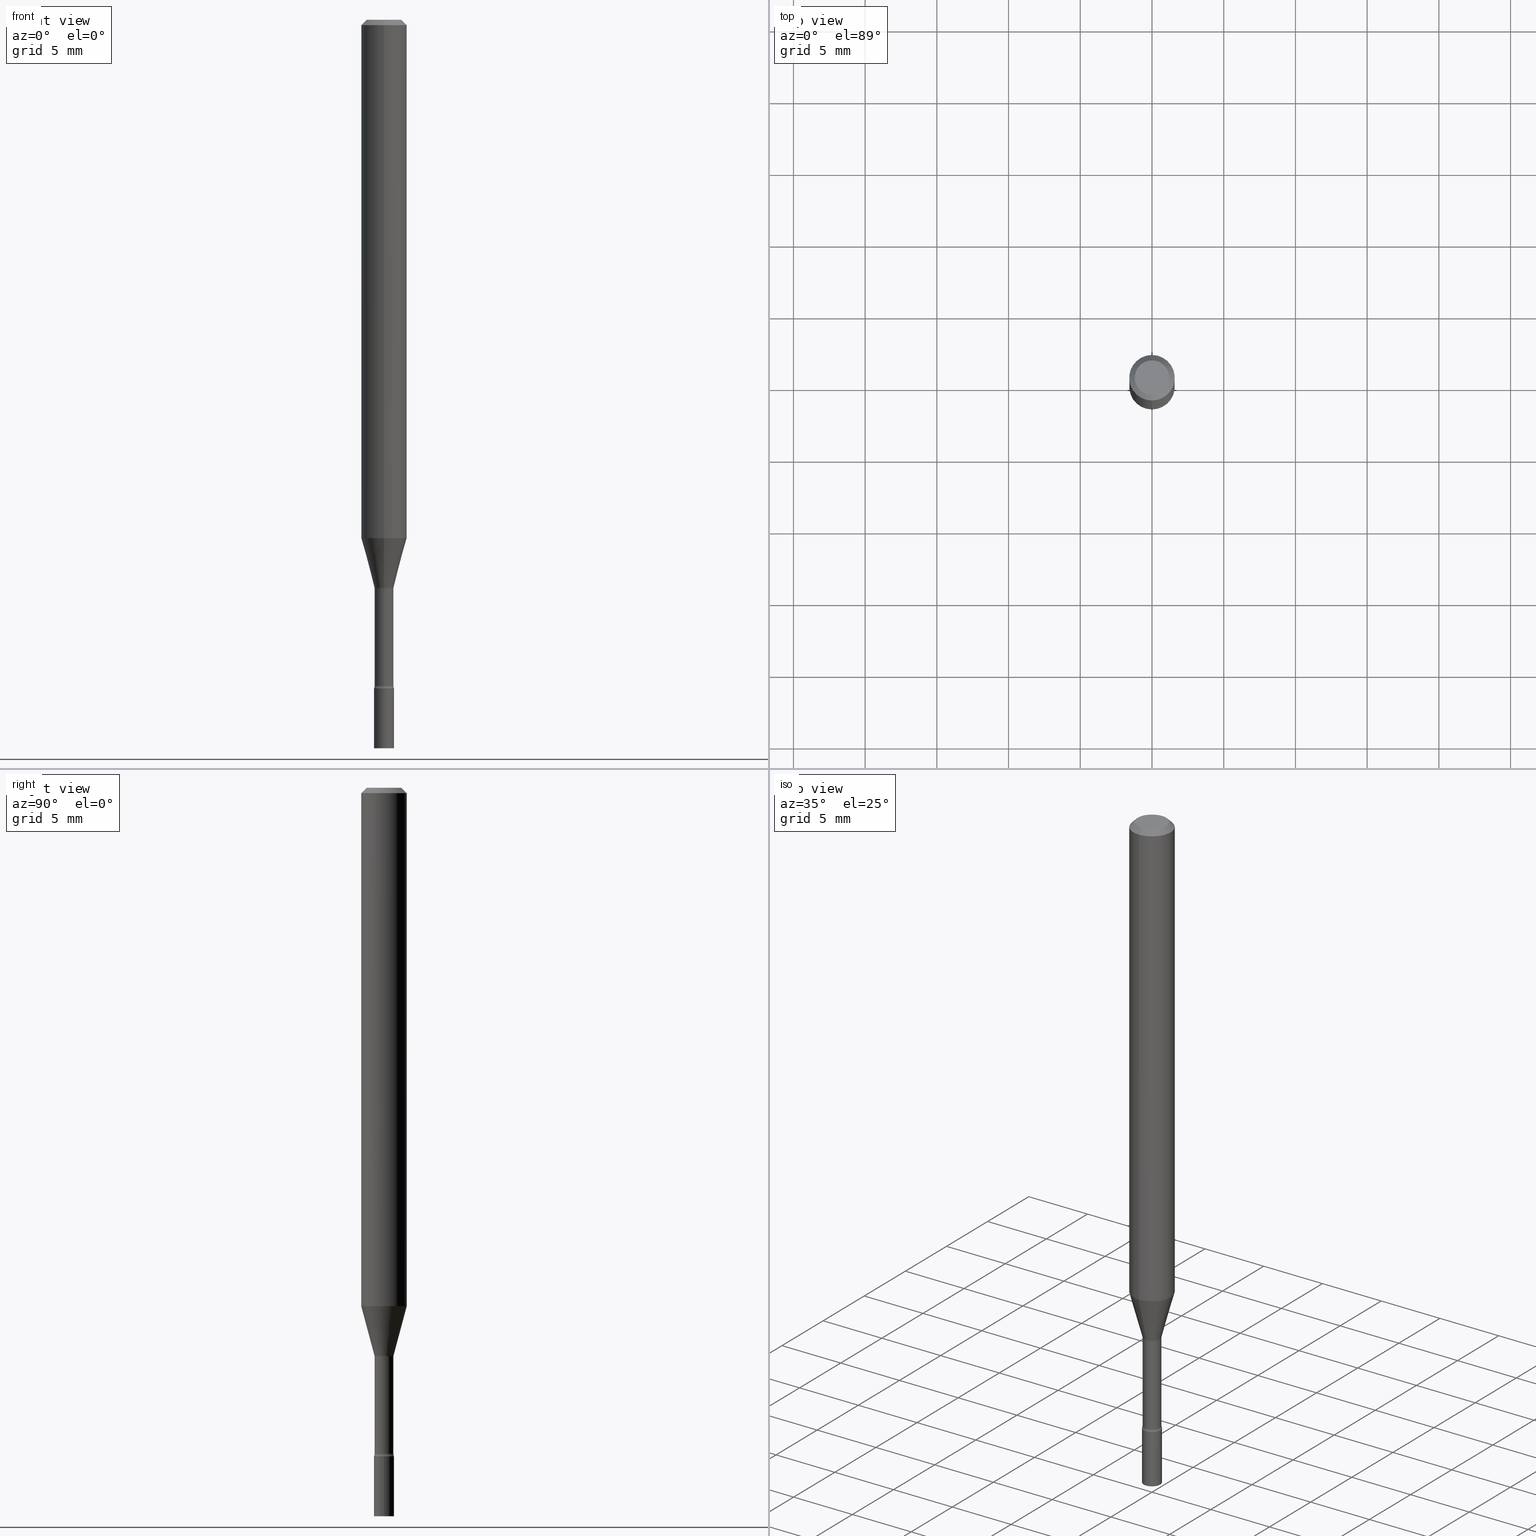
[diagram: canonical four-view strip — front | top / right | iso, engineering-drawing reading convention]
A machine part, canonical four-view strip (front | top / right | iso — engineering-drawing reading convention). The complete STEP part file that produces these views, byte-faithful:
ISO-10303-21;
HEADER;
FILE_DESCRIPTION (( 'STEP AP203' ),
    '1' );
FILE_NAME ('01322.STEP',
    '2024-03-08T21:14:00',
    ( '' ),
    ( '' ),
    'SwSTEP 2.0',
    'SolidWorks 2023',
    '' );
FILE_SCHEMA (( 'CONFIG_CONTROL_DESIGN' ));
ENDSEC;

DATA;
#1 = ORIENTED_EDGE ( 'NONE', *, *, #482, .T. ) ;
#2 = CARTESIAN_POINT ( 'NONE',  ( 4.487435259349726059E-29, -6.406868256777172111E-15, -1.834999999999999964 ) ) ;
#3 = PRODUCT ( '01322', '01322', '', ( #332 ) ) ;
#4 = VECTOR ( 'NONE', #499, 39.37007874015748143 ) ;
#5 = AXIS2_PLACEMENT_3D ( 'NONE', #360, #438, #11 ) ;
#6 = CC_DESIGN_APPROVAL ( #160, ( #16 ) ) ;
#7 = DIRECTION ( 'NONE',  ( -2.445546163158824797E-29, 3.491370559253938417E-15, 1.000000000000000000 ) ) ;
#8 = UNCERTAINTY_MEASURE_WITH_UNIT (LENGTH_MEASURE( 1.000000000000000082E-05 ), #110, 'distance_accuracy_value', 'NONE');
#9 = DIRECTION ( 'NONE',  ( 1.000000000000000000, -6.982962677686266711E-15, 4.876176775795935793E-29 ) ) ;
#10 = DIRECTION ( 'NONE',  ( -2.445546163158824797E-29, 3.491370559253938417E-15, 1.000000000000000000 ) ) ;
#11 = DIRECTION ( 'NONE',  ( -6.982962677686265922E-15, -1.000000000000000000, 0.000000000000000000 ) ) ;
#12 = DIRECTION ( 'NONE',  ( -2.445546163158824797E-29, 3.491370559253938417E-15, 1.000000000000000000 ) ) ;
#13 = ADVANCED_FACE ( 'NONE', ( #493 ), #278, .F. ) ;
#14 = DIRECTION ( 'NONE',  ( 4.937700262164548042E-15, 0.7071067811865451302, -0.7071067811865499042 ) ) ;
#15 = AXIS2_PLACEMENT_3D ( 'NONE', #449, #324, #19 ) ;
#16 = PRODUCT_DEFINITION ( 'UNKNOWN', '', #240, #459 ) ;
#17 = DIRECTION ( 'NONE',  ( -6.982962677686265922E-15, -1.000000000000000000, 3.483106191921935554E-15 ) ) ;
#18 = ORIENTED_EDGE ( 'NONE', *, *, #214, .F. ) ;
#19 = DIRECTION ( 'NONE',  ( -6.982962677686266711E-15, -1.000000000000000000, 3.491370559253938812E-15 ) ) ;
#20 = ORIENTED_EDGE ( 'NONE', *, *, #245, .T. ) ;
#21 = PERSON_AND_ORGANIZATION_ROLE ( 'design_owner' ) ;
#22 = APPROVAL_PERSON_ORGANIZATION ( #99, #160, #218 ) ;
#23 = ORIENTED_EDGE ( 'NONE', *, *, #70, .F. ) ;
#24 = DIRECTION ( 'NONE',  ( 1.000000000000000000, -7.105427357601001070E-15, 4.926314151883389171E-29 ) ) ;
#25 = VERTEX_POINT ( 'NONE', #444 ) ;
#26 = SECURITY_CLASSIFICATION ( '', '', #306 ) ;
#27 = DATE_AND_TIME ( #223, #520 ) ;
#28 = DIRECTION ( 'NONE',  ( -1.807323732225326589E-15, -0.2588190451025176864, 0.9659258262890690894 ) ) ;
#29 = ORIENTED_EDGE ( 'NONE', *, *, #48, .T. ) ;
#30 = DIRECTION ( 'NONE',  ( -6.982962677686266711E-15, -1.000000000000000000, 0.000000000000000000 ) ) ;
#31 = EDGE_CURVE ( 'NONE', #446, #138, #263, .T. ) ;
#32 = AXIS2_PLACEMENT_3D ( 'NONE', #126, #165, #273 ) ;
#33 = APPROVAL ( #404, 'UNSPECIFIED' ) ;
#34 = PERSON_AND_ORGANIZATION ( #86, #323 ) ;
#35 = EDGE_CURVE ( 'NONE', #135, #62, #132, .T. ) ;
#36 = PLANE ( 'NONE',  #63 ) ;
#37 = VECTOR ( 'NONE', #210, 39.37007874015748143 ) ;
#38 = CIRCLE ( 'NONE', #147, 0.02750000000000000014 ) ;
#39 = DIRECTION ( 'NONE',  ( -6.982962677686266711E-15, -1.000000000000000000, 0.000000000000000000 ) ) ;
#40 = CARTESIAN_POINT ( 'NONE',  ( 3.316907271900976096E-16, 0.04749999999999999362, -1.802996880437402498E-16 ) ) ;
#41 = APPROVAL_DATE_TIME ( #441, #125 ) ;
#42 = CARTESIAN_POINT ( 'NONE',  ( 4.487577209396443380E-29, -6.406664976230976964E-15, -1.834999999999999964 ) ) ;
#43 = AXIS2_PLACEMENT_3D ( 'NONE', #393, #349, #517 ) ;
#44 = PRODUCT_DEFINITION_SHAPE ( 'NONE', 'NONE',  #16 ) ;
#45 = DIRECTION ( 'NONE',  ( -2.445546163158824797E-29, 3.491370559253938417E-15, 1.000000000000000000 ) ) ;
#46 = DIRECTION ( 'NONE',  ( -2.445468806185136597E-29, 3.491481338843145583E-15, 1.000000000000000000 ) ) ;
#47 = CARTESIAN_POINT ( 'NONE',  ( 3.156980902676104924E-16, 0.02636111260565853626, -1.558092501787273099 ) ) ;
#48 = EDGE_CURVE ( 'NONE', #417, #215, #319, .T. ) ;
#49 = CONICAL_SURFACE ( 'NONE', #501, 0.02636111260566397288, 0.2617993877991497409 ) ;
#50 = DIRECTION ( 'NONE',  ( -2.445468806185136597E-29, 3.491481338843145583E-15, 1.000000000000000000 ) ) ;
#51 = CONICAL_SURFACE ( 'NONE', #345, 0.06250000000000000000, 0.7853981633974483900 ) ;
#52 = ADVANCED_FACE ( 'NONE', ( #479 ), #36, .T. ) ;
#53 = CIRCLE ( 'NONE', #484, 0.01500000000000003587 ) ;
#54 = CARTESIAN_POINT ( 'NONE',  ( 0.000000000000000000, 0.000000000000000000, 0.000000000000000000 ) ) ;
#55 = AXIS2_PLACEMENT_3D ( 'NONE', #374, #371, #463 ) ;
#56 = ORIENTED_EDGE ( 'NONE', *, *, #90, .T. ) ;
#57 =( LENGTH_UNIT ( ) NAMED_UNIT ( * ) SI_UNIT ( $, .METRE. ) );
#58 = LOCAL_TIME ( 16, 14, 0.000000000000000000, #238 ) ;
#59 = ORIENTED_EDGE ( 'NONE', *, *, #480, .T. ) ;
#60 = LOCAL_TIME ( 16, 14, 0.000000000000000000, #387 ) ;
#61 = DIRECTION ( 'NONE',  ( 1.000000000000000000, 0.000000000000000000, 0.000000000000000000 ) ) ;
#62 = VERTEX_POINT ( 'NONE', #156 ) ;
#63 = AXIS2_PLACEMENT_3D ( 'NONE', #269, #351, #432 ) ;
#64 = ORIENTED_EDGE ( 'NONE', *, *, #406, .T. ) ;
#65 = DIRECTION ( 'NONE',  ( -2.445546163158824797E-29, 3.491370559253938417E-15, 1.000000000000000000 ) ) ;
#66 = FACE_OUTER_BOUND ( 'NONE', #293, .T. ) ;
#67 = COORDINATED_UNIVERSAL_TIME_OFFSET ( 5, 0, .BEHIND. ) ;
#68 = APPROVAL_PERSON_ORGANIZATION ( #152, #33, #127 ) ;
#69 = ORIENTED_EDGE ( 'NONE', *, *, #70, .T. ) ;
#70 = EDGE_CURVE ( 'NONE', #294, #62, #228, .T. ) ;
#71 = FACE_OUTER_BOUND ( 'NONE', #108, .T. ) ;
#72 = CC_DESIGN_DATE_AND_TIME_ASSIGNMENT ( #487, #227, ( #16 ) ) ;
#73 = COORDINATED_UNIVERSAL_TIME_OFFSET ( 5, 0, .BEHIND. ) ;
#74 = AXIS2_PLACEMENT_3D ( 'NONE', #42, #10, #237 ) ;
#75 = CARTESIAN_POINT ( 'NONE',  ( -0.02750000000000000014, -6.499516214897703913E-15, -2.000000000000000000 ) ) ;
#76 = DIRECTION ( 'NONE',  ( -6.982962677686265922E-15, -1.000000000000000000, 3.491370559253938023E-15 ) ) ;
#77 = ADVANCED_FACE ( 'NONE', ( #272 ), #384, .F. ) ;
#78 = ORIENTED_EDGE ( 'NONE', *, *, #31, .T. ) ;
#79 = CARTESIAN_POINT ( 'NONE',  ( 0.000000000000000000, 0.000000000000000000, 0.000000000000000000 ) ) ;
#80 = AXIS2_PLACEMENT_3D ( 'NONE', #518, #236, #122 ) ;
#81 = PERSON_AND_ORGANIZATION_ROLE ( 'creator' ) ;
#82 = EDGE_CURVE ( 'NONE', #102, #25, #357, .T. ) ;
#83 = CARTESIAN_POINT ( 'NONE',  ( 4.470709700753047363E-29, -6.382988591833448692E-15, -1.828160592130893214 ) ) ;
#84 = CC_DESIGN_APPROVAL ( #125, ( #26 ) ) ;
#85 = APPROVAL_DATE_TIME ( #27, #160 ) ;
#86 = PERSON ( 'UNSPECIFIED', 'UNSPECIFIED', 'UNSPECIFIED', ('UNSPECIFIED'), ('UNSPECIFIED'), ('UNSPECIFIED') ) ;
#87 = CIRCLE ( 'NONE', #334, 0.01500000000000001853 ) ;
#88 = DIRECTION ( 'NONE',  ( -2.445546163158824797E-29, 3.491370559253938417E-15, 1.000000000000000000 ) ) ;
#89 = DIRECTION ( 'NONE',  ( -6.982962677686265922E-15, -1.000000000000000000, 3.491370559253938023E-15 ) ) ;
#90 = EDGE_CURVE ( 'NONE', #25, #511, #159, .T. ) ;
#91 = CARTESIAN_POINT ( 'NONE',  ( 4.487435259349726059E-29, -6.406868256777172111E-15, -1.834999999999999964 ) ) ;
#92 = ORIENTED_EDGE ( 'NONE', *, *, #480, .F. ) ;
#93 = VECTOR ( 'NONE', #14, 39.37007874015748143 ) ;
#94 = CIRCLE ( 'NONE', #164, 0.06250000000000000000 ) ;
#95 = ORIENTED_EDGE ( 'NONE', *, *, #400, .T. ) ;
#96 = DIRECTION ( 'NONE',  ( 0.000000000000000000, 0.000000000000000000, 1.000000000000000000 ) ) ;
#97 = ORIENTED_EDGE ( 'NONE', *, *, #208, .F. ) ;
#98 = EDGE_LOOP ( 'NONE', ( #261, #370, #1, #333 ) ) ;
#99 = PERSON_AND_ORGANIZATION ( #86, #323 ) ;
#100 = CARTESIAN_POINT ( 'NONE',  ( 1.920314736364172109E-16, 0.02749999999999359554, -1.834999999999999964 ) ) ;
#101 = ORIENTED_EDGE ( 'NONE', *, *, #82, .T. ) ;
#102 = VERTEX_POINT ( 'NONE', #234 ) ;
#103 = CYLINDRICAL_SURFACE ( 'NONE', #193, 0.06250000000000000000 ) ;
#104 = APPLICATION_PROTOCOL_DEFINITION ( 'international standard', 'config_control_design', 1994, #408 ) ;
#105 = DIMENSIONAL_EXPONENTS ( 1.000000000000000000, 0.000000000000000000, 0.000000000000000000, 0.000000000000000000, 0.000000000000000000, 0.000000000000000000, 0.000000000000000000 ) ;
#106 = AXIS2_PLACEMENT_3D ( 'NONE', #394, #130, #347 ) ;
#107 = EDGE_CURVE ( 'NONE', #25, #102, #145, .T. ) ;
#108 = EDGE_LOOP ( 'NONE', ( #95, #326, #23, #18 ) ) ;
#109 = EDGE_CURVE ( 'NONE', #235, #215, #428, .T. ) ;
#110 =( CONVERSION_BASED_UNIT ( 'INCH', #504 ) LENGTH_UNIT ( ) NAMED_UNIT ( #105 ) );
#111 = EDGE_LOOP ( 'NONE', ( #369, #382 ) ) ;
#112 = CALENDAR_DATE ( 2024, 8, 3 ) ;
#113 = ADVANCED_BREP_SHAPE_REPRESENTATION ( '01322', ( #311, #328, #179 ), #474 ) ;
#114 = AXIS2_PLACEMENT_3D ( 'NONE', #100, #513, #372 ) ;
#115 = CARTESIAN_POINT ( 'NONE',  ( -1.840786654675983805E-16, -0.02636111260566941297, -1.558092501787273099 ) ) ;
#116 = AXIS2_PLACEMENT_3D ( 'NONE', #178, #284, #456 ) ;
#117 = CYLINDRICAL_SURFACE ( 'NONE', #492, 0.06250000000000000000 ) ;
#118 = VERTEX_POINT ( 'NONE', #308 ) ;
#119 = CARTESIAN_POINT ( 'NONE',  ( -4.364351673553916201E-16, -0.06250000000000000000, 2.182106599533711511E-16 ) ) ;
#120 = DIRECTION ( 'NONE',  ( -6.982962677686265922E-15, -1.000000000000000000, 0.000000000000000000 ) ) ;
#121 = ADVANCED_FACE ( 'NONE', ( #197 ), #117, .T. ) ;
#122 = DIRECTION ( 'NONE',  ( -6.982962677686265922E-15, -1.000000000000000000, 4.370956789862821150E-15 ) ) ;
#123 = AXIS2_PLACEMENT_3D ( 'NONE', #40, #166, #491 ) ;
#124 = AXIS2_PLACEMENT_3D ( 'NONE', #427, #380, #30 ) ;
#125 = APPROVAL ( #489, 'UNSPECIFIED' ) ;
#126 = CARTESIAN_POINT ( 'NONE',  ( 3.819760618790408419E-29, -5.453605822173385006E-15, -1.561974787463811021 ) ) ;
#127 = APPROVAL_ROLE ( '' ) ;
#128 = ADVANCED_FACE ( 'NONE', ( #304 ), #379, .T. ) ;
#129 = FACE_OUTER_BOUND ( 'NONE', #268, .T. ) ;
#130 = DIRECTION ( 'NONE',  ( -2.445546163158824797E-29, 3.491370559253938417E-15, 1.000000000000000000 ) ) ;
#131 = CARTESIAN_POINT ( 'NONE',  ( 3.668319244738244448E-31, -5.237055838880918670E-17, -0.01500000000000003067 ) ) ;
#132 = LINE ( 'NONE', #409, #4 ) ;
#133 = DIRECTION ( 'NONE',  ( -1.000000000000000000, 6.982962677686265922E-15, -4.883557194083112340E-29 ) ) ;
#134 = CARTESIAN_POINT ( 'NONE',  ( 4.440892098500976219E-16, 0.06249999999999995143, -0.01500000000000024751 ) ) ;
#135 = VERTEX_POINT ( 'NONE', #75 ) ;
#136 = VECTOR ( 'NONE', #477, 39.37007874015748143 ) ;
#137 = CARTESIAN_POINT ( 'NONE',  ( 0.000000000000000000, 0.000000000000000000, 0.000000000000000000 ) ) ;
#138 = VERTEX_POINT ( 'NONE', #469 ) ;
#139 = DIRECTION ( 'NONE',  ( -6.982962677686265922E-15, -1.000000000000000000, 0.000000000000000000 ) ) ;
#140 = ORIENTED_EDGE ( 'NONE', *, *, #232, .F. ) ;
#141 = ORIENTED_EDGE ( 'NONE', *, *, #506, .T. ) ;
#142 = ORIENTED_EDGE ( 'NONE', *, *, #482, .F. ) ;
#143 = ADVANCED_FACE ( 'NONE', ( #462 ), #49, .T. ) ;
#144 = DIRECTION ( 'NONE',  ( -6.982962677686265922E-15, -1.000000000000000000, 3.483106191921935554E-15 ) ) ;
#145 = CIRCLE ( 'NONE', #412, 0.06250000000000000000 ) ;
#146 = AXIS2_PLACEMENT_3D ( 'NONE', #83, #402, #89 ) ;
#147 = AXIS2_PLACEMENT_3D ( 'NONE', #440, #50, #175 ) ;
#148 = DIRECTION ( 'NONE',  ( -2.445546163158825078E-29, 3.491370559253938417E-15, 1.000000000000000000 ) ) ;
#149 = ORIENTED_EDGE ( 'NONE', *, *, #208, .T. ) ;
#150 = CALENDAR_DATE ( 2024, 8, 3 ) ;
#151 = FACE_OUTER_BOUND ( 'NONE', #280, .T. ) ;
#152 = PERSON_AND_ORGANIZATION ( #86, #323 ) ;
#153 = FACE_OUTER_BOUND ( 'NONE', #411, .T. ) ;
#154 = LINE ( 'NONE', #342, #161 ) ;
#155 = LOCAL_TIME ( 16, 14, 0.000000000000000000, #73 ) ;
#156 = CARTESIAN_POINT ( 'NONE',  ( -0.02750000000000000014, -6.499516214897703913E-15, -1.834999999999999964 ) ) ;
#157 = DIRECTION ( 'NONE',  ( -2.445546163158825078E-29, 3.491370559253938417E-15, 1.000000000000000000 ) ) ;
#158 = EDGE_CURVE ( 'NONE', #392, #373, #259, .T. ) ;
#159 = LINE ( 'NONE', #119, #206 ) ;
#160 = APPROVAL ( #421, 'UNSPECIFIED' ) ;
#161 = VECTOR ( 'NONE', #148, 39.37007874015748143 ) ;
#162 = DATE_AND_TIME ( #355, #58 ) ;
#163 = AXIS2_PLACEMENT_3D ( 'NONE', #486, #7, #170 ) ;
#164 = AXIS2_PLACEMENT_3D ( 'NONE', #497, #509, #144 ) ;
#165 = DIRECTION ( 'NONE',  ( -2.445546163158824797E-29, 3.491370559253938417E-15, 1.000000000000000000 ) ) ;
#166 = DIRECTION ( 'NONE',  ( 2.445546163158824517E-29, -3.491370559253938417E-15, -1.000000000000000000 ) ) ;
#167 = DIRECTION ( 'NONE',  ( 6.982962677686265922E-15, 1.000000000000000000, -3.483106191921935554E-15 ) ) ;
#168 = VECTOR ( 'NONE', #431, 39.37007874015748143 ) ;
#169 = LINE ( 'NONE', #361, #93 ) ;
#170 = DIRECTION ( 'NONE',  ( -6.982962677686265922E-15, -1.000000000000000000, 0.000000000000000000 ) ) ;
#171 = ORIENTED_EDGE ( 'NONE', *, *, #158, .F. ) ;
#172 = ADVANCED_FACE ( 'NONE', ( #153 ), #103, .T. ) ;
#173 = LOCAL_TIME ( 16, 14, 0.000000000000000000, #475 ) ;
#174 = ORIENTED_EDGE ( 'NONE', *, *, #107, .F. ) ;
#175 = DIRECTION ( 'NONE',  ( 1.000000000000000000, -6.982962677686279332E-15, 0.000000000000000000 ) ) ;
#176 = ORIENTED_EDGE ( 'NONE', *, *, #281, .F. ) ;
#177 = AXIS2_PLACEMENT_3D ( 'NONE', #321, #242, #471 ) ;
#178 = CARTESIAN_POINT ( 'NONE',  ( 0.000000000000000000, 0.000000000000000000, 0.000000000000000000 ) ) ;
#179 = AXIS2_PLACEMENT_3D ( 'NONE', #137, #96, #61 ) ;
#180 = ORIENTED_EDGE ( 'NONE', *, *, #309, .F. ) ;
#181 = ORIENTED_EDGE ( 'NONE', *, *, #109, .T. ) ;
#182 = CARTESIAN_POINT ( 'NONE',  ( 3.840629472727447874E-16, 0.04749999999999999362, -1.947592745229183872E-16 ) ) ;
#183 = EDGE_LOOP ( 'NONE', ( #69, #190 ) ) ;
#184 = DIRECTION ( 'NONE',  ( -2.445546163158824797E-29, 3.491370559253938417E-15, 1.000000000000000000 ) ) ;
#185 = CARTESIAN_POINT ( 'NONE',  ( -4.364351673553912750E-16, -0.06250000000000005551, -0.01499999999999981209 ) ) ;
#186 = EDGE_LOOP ( 'NONE', ( #419, #180, #297, #59 ) ) ;
#187 = CIRCLE ( 'NONE', #106, 0.04749999999999999362 ) ;
#188 = CIRCLE ( 'NONE', #163, 0.02585000000000001186 ) ;
#189 = APPROVAL_ROLE ( '' ) ;
#190 = ORIENTED_EDGE ( 'NONE', *, *, #433, .T. ) ;
#191 = DIRECTION ( 'NONE',  ( -6.982962677686264344E-15, -1.000000000000000000, 3.491370559253938417E-15 ) ) ;
#192 = CARTESIAN_POINT ( 'NONE',  ( 3.480551036687311738E-29, -4.968989587084583465E-15, -1.423220337902600718 ) ) ;
#193 = AXIS2_PLACEMENT_3D ( 'NONE', #221, #184, #339 ) ;
#194 = DIRECTION ( 'NONE',  ( -2.445468806185136597E-29, 3.491481338843145583E-15, 1.000000000000000000 ) ) ;
#195 = EDGE_CURVE ( 'NONE', #102, #507, #298, .T. ) ;
#196 = EDGE_CURVE ( 'NONE', #138, #446, #187, .T. ) ;
#197 = FACE_OUTER_BOUND ( 'NONE', #461, .T. ) ;
#198 = PERSON_AND_ORGANIZATION ( #86, #323 ) ;
#199 = FACE_OUTER_BOUND ( 'NONE', #183, .T. ) ;
#200 = AXIS2_PLACEMENT_3D ( 'NONE', #233, #65, #191 ) ;
#201 = PERSON_AND_ORGANIZATION_ROLE ( 'creator' ) ;
#202 = CIRCLE ( 'NONE', #55, 0.02750000000000000014 ) ;
#203 = CARTESIAN_POINT ( 'NONE',  ( 3.668319244738244448E-31, -5.237055838880918670E-17, -0.01500000000000003067 ) ) ;
#204 = CYLINDRICAL_SURFACE ( 'NONE', #285, 0.02585000000000000492 ) ;
#205 = CARTESIAN_POINT ( 'NONE',  ( 1.953992523340724679E-16, 0.02749999999999360248, -1.834999999999999964 ) ) ;
#206 = VECTOR ( 'NONE', #157, 39.37007874015748143 ) ;
#207 = CIRCLE ( 'NONE', #5, 0.02585000000000001186 ) ;
#208 = EDGE_CURVE ( 'NONE', #392, #25, #388, .T. ) ;
#209 = DIRECTION ( 'NONE',  ( -6.982962677686264344E-15, -1.000000000000000000, 3.491370559253938417E-15 ) ) ;
#210 = DIRECTION ( 'NONE',  ( -2.445546163158825078E-29, 3.491370559253938417E-15, 1.000000000000000000 ) ) ;
#211 = CC_DESIGN_PERSON_AND_ORGANIZATION_ASSIGNMENT ( #198, #472, ( #26 ) ) ;
#212 = ORIENTED_EDGE ( 'NONE', *, *, #281, .T. ) ;
#213 = APPROVAL_PERSON_ORGANIZATION ( #430, #125, #189 ) ;
#214 = EDGE_CURVE ( 'NONE', #118, #294, #266, .T. ) ;
#215 = VERTEX_POINT ( 'NONE', #224 ) ;
#216 = ORIENTED_EDGE ( 'NONE', *, *, #35, .F. ) ;
#217 = ORIENTED_EDGE ( 'NONE', *, *, #341, .F. ) ;
#218 = APPROVAL_ROLE ( '' ) ;
#219 = CARTESIAN_POINT ( 'NONE',  ( 0.02750000000000000014, -1.920314736363723444E-16, 1.340948613343882413E-30 ) ) ;
#220 = EDGE_LOOP ( 'NONE', ( #331, #212, #20, #142 ) ) ;
#221 = CARTESIAN_POINT ( 'NONE',  ( 0.000000000000000000, 0.000000000000000000, 0.000000000000000000 ) ) ;
#222 = EDGE_CURVE ( 'NONE', #417, #378, #87, .T. ) ;
#223 = CALENDAR_DATE ( 2024, 8, 3 ) ;
#224 = CARTESIAN_POINT ( 'NONE',  ( 1.836752971940306269E-16, 0.02584999999999454401, -1.561974787463811021 ) ) ;
#225 = ORIENTED_EDGE ( 'NONE', *, *, #381, .F. ) ;
#226 = CARTESIAN_POINT ( 'NONE',  ( -1.805095852181453325E-16, -0.02585000000000639564, -1.828160592130893436 ) ) ;
#227 = DATE_TIME_ROLE ( 'creation_date' ) ;
#228 = CIRCLE ( 'NONE', #299, 0.02750000000000000014 ) ;
#229 = AXIS2_PLACEMENT_3D ( 'NONE', #458, #439, #120 ) ;
#230 = PERSON_AND_ORGANIZATION ( #86, #323 ) ;
#231 = CARTESIAN_POINT ( 'NONE',  ( 2.902567075580391181E-16, 0.04084999999999455039, -1.561974787463811243 ) ) ;
#232 = EDGE_CURVE ( 'NONE', #373, #215, #483, .T. ) ;
#233 = CARTESIAN_POINT ( 'NONE',  ( 0.000000000000000000, 0.000000000000000000, 0.000000000000000000 ) ) ;
#234 = CARTESIAN_POINT ( 'NONE',  ( 4.440892098500972274E-16, 0.06249999999999501094, -1.423220337902601162 ) ) ;
#235 = VERTEX_POINT ( 'NONE', #468 ) ;
#236 = DIRECTION ( 'NONE',  ( -2.445546163158824797E-29, 3.491370559253938417E-15, 1.000000000000000000 ) ) ;
#237 = DIRECTION ( 'NONE',  ( -6.982962677686266711E-15, -1.000000000000000000, 0.000000000000000000 ) ) ;
#238 = COORDINATED_UNIVERSAL_TIME_OFFSET ( 5, 0, .BEHIND. ) ;
#239 = FACE_OUTER_BOUND ( 'NONE', #413, .T. ) ;
#240 = PRODUCT_DEFINITION_FORMATION_WITH_SPECIFIED_SOURCE ( 'ANY', '', #3, .NOT_KNOWN. ) ;
#241 = FACE_OUTER_BOUND ( 'NONE', #352, .T. ) ;
#242 = DIRECTION ( 'NONE',  ( -2.445468806185136597E-29, 3.491481338843145583E-15, 1.000000000000000000 ) ) ;
#243 = CARTESIAN_POINT ( 'NONE',  ( 3.819760618790408419E-29, -5.453605822173385006E-15, -1.561974787463811021 ) ) ;
#244 = LINE ( 'NONE', #359, #512 ) ;
#245 = EDGE_CURVE ( 'NONE', #470, #235, #154, .T. ) ;
#246 = DIRECTION ( 'NONE',  ( -6.982962677686265922E-15, -1.000000000000000000, 3.491370559253938023E-15 ) ) ;
#247 = DIRECTION ( 'NONE',  ( 1.000000000000000000, -6.982962677686265922E-15, 4.876176775795935793E-29 ) ) ;
#248 = ORIENTED_EDGE ( 'NONE', *, *, #495, .F. ) ;
#249 = ADVANCED_FACE ( 'NONE', ( #151 ), #302, .F. ) ;
#250 = EDGE_LOOP ( 'NONE', ( #476, #29, #505, #257 ) ) ;
#251 = VECTOR ( 'NONE', #28, 39.37007874015748854 ) ;
#252 = TOROIDAL_SURFACE ( 'NONE', #32, 0.04085000000000000436, 0.01500000000000003414 ) ;
#253 = ORIENTED_EDGE ( 'NONE', *, *, #433, .F. ) ;
#254 = LINE ( 'NONE', #296, #502 ) ;
#255 = ORIENTED_EDGE ( 'NONE', *, *, #196, .F. ) ;
#256 = ORIENTED_EDGE ( 'NONE', *, *, #90, .F. ) ;
#257 = ORIENTED_EDGE ( 'NONE', *, *, #245, .F. ) ;
#258 = EDGE_CURVE ( 'NONE', #135, #118, #403, .T. ) ;
#259 = CIRCLE ( 'NONE', #43, 0.02636111260566397288 ) ;
#260 = CARTESIAN_POINT ( 'NONE',  ( 3.810387139592400580E-29, -5.439878289334400847E-15, -1.558092501787273099 ) ) ;
#261 = ORIENTED_EDGE ( 'NONE', *, *, #514, .F. ) ;
#262 = ADVANCED_FACE ( 'NONE', ( #66 ), #386, .T. ) ;
#263 = CIRCLE ( 'NONE', #15, 0.04749999999999999362 ) ;
#264 = ADVANCED_FACE ( 'NONE', ( #291 ), #337, .T. ) ;
#265 = CIRCLE ( 'NONE', #414, 0.02636111260566397288 ) ;
#266 = LINE ( 'NONE', #219, #168 ) ;
#267 = DIRECTION ( 'NONE',  ( -6.982962677686265922E-15, -1.000000000000000000, 3.491370559253938417E-15 ) ) ;
#268 = EDGE_LOOP ( 'NONE', ( #140, #171, #64, #181 ) ) ;
#269 = CARTESIAN_POINT ( 'NONE',  ( 1.920314736364212538E-16, 0.02749999999999301961, -2.000000000000000000 ) ) ;
#270 = CIRCLE ( 'NONE', #74, 0.02750000000000000014 ) ;
#271 = AXIS2_PLACEMENT_3D ( 'NONE', #335, #340, #467 ) ;
#272 = FACE_OUTER_BOUND ( 'NONE', #186, .T. ) ;
#273 = DIRECTION ( 'NONE',  ( -6.982962677686265922E-15, -1.000000000000000000, 3.491370559253938023E-15 ) ) ;
#274 = PERSON_AND_ORGANIZATION_ROLE ( 'design_supplier' ) ;
#275 = DIRECTION ( 'NONE',  ( 1.000000000000000000, -6.982962677686279332E-15, 0.000000000000000000 ) ) ;
#276 = EDGE_CURVE ( 'NONE', #378, #420, #270, .T. ) ;
#277 = CARTESIAN_POINT ( 'NONE',  ( -1.840786654675983805E-16, -0.02636111260566941297, -1.558092501787273099 ) ) ;
#278 = TOROIDAL_SURFACE ( 'NONE', #465, 0.04085000000000000436, 0.01500000000000003414 ) ;
#279 = CARTESIAN_POINT ( 'NONE',  ( 3.668319244738244448E-31, -5.237055838880918670E-17, -0.01500000000000003067 ) ) ;
#280 = EDGE_LOOP ( 'NONE', ( #92, #418 ) ) ;
#281 = EDGE_CURVE ( 'NONE', #417, #470, #207, .T. ) ;
#282 = ADVANCED_FACE ( 'NONE', ( #320 ), #51, .T. ) ;
#283 = DIRECTION ( 'NONE',  ( -6.982962677686268288E-15, -1.000000000000000000, 0.000000000000000000 ) ) ;
#284 = DIRECTION ( 'NONE',  ( -2.445468806185136597E-29, 3.491481338843145583E-15, 1.000000000000000000 ) ) ;
#285 = AXIS2_PLACEMENT_3D ( 'NONE', #494, #88, #209 ) ;
#286 = ORIENTED_EDGE ( 'NONE', *, *, #196, .T. ) ;
#287 = AXIS2_PLACEMENT_3D ( 'NONE', #396, #435, #76 ) ;
#288 = AXIS2_PLACEMENT_3D ( 'NONE', #131, #363, #443 ) ;
#289 = CARTESIAN_POINT ( 'NONE',  ( 1.836752971939858837E-16, 0.02585000000000000492, -9.025192895671432946E-17 ) ) ;
#290 = ORIENTED_EDGE ( 'NONE', *, *, #381, .T. ) ;
#291 = FACE_OUTER_BOUND ( 'NONE', #464, .T. ) ;
#292 = APPLICATION_PROTOCOL_DEFINITION ( 'international standard', 'config_control_design', 1994, #434 ) ;
#293 = EDGE_LOOP ( 'NONE', ( #248, #460, #149, #330 ) ) ;
#294 = VERTEX_POINT ( 'NONE', #356 ) ;
#295 = DIRECTION ( 'NONE',  ( -2.445546163158824797E-29, 3.491370559253938417E-15, 1.000000000000000000 ) ) ;
#296 = CARTESIAN_POINT ( 'NONE',  ( 1.873069706851234863E-16, 0.02636111260565853626, -1.558092501787273099 ) ) ;
#297 = ORIENTED_EDGE ( 'NONE', *, *, #454, .T. ) ;
#298 = LINE ( 'NONE', #466, #37 ) ;
#299 = AXIS2_PLACEMENT_3D ( 'NONE', #2, #194, #312 ) ;
#300 = AXIS2_PLACEMENT_3D ( 'NONE', #405, #46, #275 ) ;
#301 = ADVANCED_FACE ( 'NONE', ( #239 ), #325, .F. ) ;
#302 = PLANE ( 'NONE',  #114 ) ;
#303 = CC_DESIGN_DATE_AND_TIME_ASSIGNMENT ( #390, #346, ( #26 ) ) ;
#304 = FACE_OUTER_BOUND ( 'NONE', #220, .T. ) ;
#305 = ADVANCED_FACE ( 'NONE', ( #490 ), #453, .T. ) ;
#306 = SECURITY_CLASSIFICATION_LEVEL ( 'unclassified' ) ;
#307 = CLOSED_SHELL ( 'NONE', ( #448, #415, #264, #52 ) ) ;
#308 = CARTESIAN_POINT ( 'NONE',  ( 0.02750000000000000014, -7.174994151322663658E-15, -2.000000000000000000 ) ) ;
#309 = EDGE_CURVE ( 'NONE', #470, #417, #188, .T. ) ;
#310 = CARTESIAN_POINT ( 'NONE',  ( 3.819881448432944425E-29, -5.453432787248077900E-15, -1.561974787463811021 ) ) ;
#311 = MANIFOLD_SOLID_BREP ( 'Body-Move/Copy2[1]', #307 ) ;
#312 = DIRECTION ( 'NONE',  ( 1.000000000000000000, -6.982962677686279332E-15, 0.000000000000000000 ) ) ;
#313 = ORIENTED_EDGE ( 'NONE', *, *, #107, .T. ) ;
#314 = AXIS2_PLACEMENT_3D ( 'NONE', #231, #377, #391 ) ;
#315 = TOROIDAL_SURFACE ( 'NONE', #146, 0.04085000000000003212, 0.01500000000000002200 ) ;
#316 = CIRCLE ( 'NONE', #124, 0.02584999999999999798 ) ;
#317 = PERSON_AND_ORGANIZATION ( #86, #323 ) ;
#318 = DIRECTION ( 'NONE',  ( -2.438088387897960049E-29, 3.491481338843145188E-15, 1.000000000000000000 ) ) ;
#319 = LINE ( 'NONE', #289, #136 ) ;
#320 = FACE_OUTER_BOUND ( 'NONE', #364, .T. ) ;
#321 = CARTESIAN_POINT ( 'NONE',  ( 4.890937612370273194E-29, -6.982962677686291165E-15, -2.000000000000000000 ) ) ;
#322 = DIRECTION ( 'NONE',  ( 2.445546163158824797E-29, -3.491370559253938417E-15, -1.000000000000000000 ) ) ;
#323 = ORGANIZATION ( 'UNSPECIFIED', 'UNSPECIFIED', '' ) ;
#324 = DIRECTION ( 'NONE',  ( -2.445546163158824797E-29, 3.491370559253938417E-15, 1.000000000000000000 ) ) ;
#325 = PLANE ( 'NONE',  #123 ) ;
#326 = ORIENTED_EDGE ( 'NONE', *, *, #35, .T. ) ;
#327 = DIRECTION ( 'NONE',  ( -2.445468806185136597E-29, 3.491481338843145583E-15, 1.000000000000000000 ) ) ;
#328 = MANIFOLD_SOLID_BREP ( 'Body-Move/Copy2[2]', #452 ) ;
#329 = DIRECTION ( 'NONE',  ( 1.839019923739596765E-15, 0.2588190451025244587, 0.9659258262890673130 ) ) ;
#330 = ORIENTED_EDGE ( 'NONE', *, *, #82, .F. ) ;
#331 = ORIENTED_EDGE ( 'NONE', *, *, #48, .F. ) ;
#332 = MECHANICAL_CONTEXT ( 'NONE', #408, 'mechanical' ) ;
#333 = ORIENTED_EDGE ( 'NONE', *, *, #406, .F. ) ;
#334 = AXIS2_PLACEMENT_3D ( 'NONE', #515, #24, #425 ) ;
#335 = CARTESIAN_POINT ( 'NONE',  ( -2.852540253834394663E-16, -0.04085000000000641590, -1.828160592130892770 ) ) ;
#336 = EDGE_LOOP ( 'NONE', ( #255, #455, #141, #225 ) ) ;
#337 = CYLINDRICAL_SURFACE ( 'NONE', #436, 0.02750000000000000014 ) ;
#338 = ORIENTED_EDGE ( 'NONE', *, *, #276, .T. ) ;
#339 = DIRECTION ( 'NONE',  ( -6.982962677686265922E-15, -1.000000000000000000, 3.491370559253938417E-15 ) ) ;
#340 = DIRECTION ( 'NONE',  ( -1.000000000000000000, 6.982962677686265922E-15, -4.883557194083112340E-29 ) ) ;
#341 = EDGE_CURVE ( 'NONE', #507, #511, #485, .T. ) ;
#342 = CARTESIAN_POINT ( 'NONE',  ( -1.805095852181899771E-16, -0.02585000000000000492, 9.025192895671432946E-17 ) ) ;
#343 = ORIENTED_EDGE ( 'NONE', *, *, #214, .T. ) ;
#344 = ADVANCED_FACE ( 'NONE', ( #241 ), #315, .F. ) ;
#345 = AXIS2_PLACEMENT_3D ( 'NONE', #203, #322, #167 ) ;
#346 = DATE_TIME_ROLE ( 'classification_date' ) ;
#347 = DIRECTION ( 'NONE',  ( -6.982962677686266711E-15, -1.000000000000000000, 3.491370559253938812E-15 ) ) ;
#348 = CALENDAR_DATE ( 2024, 8, 3 ) ;
#349 = DIRECTION ( 'NONE',  ( -2.445546163158824797E-29, 3.491370559253938417E-15, 1.000000000000000000 ) ) ;
#350 = DIRECTION ( 'NONE',  ( -6.982962677686265922E-15, -1.000000000000000000, 4.370956789862821150E-15 ) ) ;
#351 = DIRECTION ( 'NONE',  ( 2.438088387897960049E-29, -3.491481338843145188E-15, -1.000000000000000000 ) ) ;
#352 = EDGE_LOOP ( 'NONE', ( #176, #478, #338, #423 ) ) ;
#353 = DIRECTION ( 'NONE',  ( -2.445546163158824797E-29, 3.491370559253938417E-15, 1.000000000000000000 ) ) ;
#354 = EDGE_CURVE ( 'NONE', #138, #511, #244, .T. ) ;
#355 = CALENDAR_DATE ( 2024, 8, 3 ) ;
#356 = CARTESIAN_POINT ( 'NONE',  ( 0.02750000000000000014, -6.598899730413544603E-15, -1.834999999999999964 ) ) ;
#357 = CIRCLE ( 'NONE', #80, 0.06250000000000000000 ) ;
#358 = AXIS2_PLACEMENT_3D ( 'NONE', #279, #45, #17 ) ;
#359 = CARTESIAN_POINT ( 'NONE',  ( -4.287811248607203282E-16, -0.06250000000000005551, -0.01499999999999981209 ) ) ;
#360 = CARTESIAN_POINT ( 'NONE',  ( 4.470851121723871370E-29, -6.382786068954048975E-15, -1.828160592130893436 ) ) ;
#361 = CARTESIAN_POINT ( 'NONE',  ( 4.364351673553919652E-16, 0.06249999999999995143, -0.01500000000000024751 ) ) ;
#362 = ADVANCED_FACE ( 'NONE', ( #129 ), #252, .F. ) ;
#363 = DIRECTION ( 'NONE',  ( 2.445546163158824797E-29, -3.491370559253938417E-15, -1.000000000000000000 ) ) ;
#364 = EDGE_LOOP ( 'NONE', ( #503, #368, #290, #498 ) ) ;
#365 = ORIENTED_EDGE ( 'NONE', *, *, #495, .T. ) ;
#366 =( NAMED_UNIT ( * ) SI_UNIT ( $, .STERADIAN. ) SOLID_ANGLE_UNIT ( ) );
#367 = ORIENTED_EDGE ( 'NONE', *, *, #158, .T. ) ;
#368 = ORIENTED_EDGE ( 'NONE', *, *, #31, .F. ) ;
#369 = ORIENTED_EDGE ( 'NONE', *, *, #400, .F. ) ;
#370 = ORIENTED_EDGE ( 'NONE', *, *, #232, .T. ) ;
#371 = DIRECTION ( 'NONE',  ( -2.445546163158824797E-29, 3.491370559253938417E-15, 1.000000000000000000 ) ) ;
#372 = DIRECTION ( 'NONE',  ( -6.982962677686265922E-15, -1.000000000000000000, 3.491370559253938417E-15 ) ) ;
#373 = VERTEX_POINT ( 'NONE', #47 ) ;
#374 = CARTESIAN_POINT ( 'NONE',  ( 4.487577209396443380E-29, -6.406664976230976964E-15, -1.834999999999999964 ) ) ;
#375 = CC_DESIGN_SECURITY_CLASSIFICATION ( #26, ( #240 ) ) ;
#376 = CC_DESIGN_PERSON_AND_ORGANIZATION_ASSIGNMENT ( #424, #21, ( #3 ) ) ;
#377 = DIRECTION ( 'NONE',  ( 1.000000000000000000, -7.105427357601001070E-15, 4.926314151883389171E-29 ) ) ;
#378 = VERTEX_POINT ( 'NONE', #205 ) ;
#379 = CYLINDRICAL_SURFACE ( 'NONE', #200, 0.02585000000000000492 ) ;
#380 = DIRECTION ( 'NONE',  ( -2.445546163158824797E-29, 3.491370559253938417E-15, 1.000000000000000000 ) ) ;
#381 = EDGE_CURVE ( 'NONE', #446, #507, #169, .T. ) ;
#382 = ORIENTED_EDGE ( 'NONE', *, *, #258, .F. ) ;
#383 = CARTESIAN_POINT ( 'NONE',  ( 3.810387139592400580E-29, -5.439878289334400847E-15, -1.558092501787273099 ) ) ;
#384 = TOROIDAL_SURFACE ( 'NONE', #287, 0.04085000000000003212, 0.01500000000000002200 ) ;
#385 = AXIS2_PLACEMENT_3D ( 'NONE', #91, #318, #247 ) ;
#386 = CONICAL_SURFACE ( 'NONE', #229, 0.02636111260566397288, 0.2617993877991497409 ) ;
#387 = COORDINATED_UNIVERSAL_TIME_OFFSET ( 5, 0, .BEHIND. ) ;
#388 = LINE ( 'NONE', #115, #251 ) ;
#389 = DIRECTION ( 'NONE',  ( -6.982962677686265922E-15, -1.000000000000000000, 0.000000000000000000 ) ) ;
#390 = DATE_AND_TIME ( #112, #173 ) ;
#391 = DIRECTION ( 'NONE',  ( 7.105427357601001859E-15, 1.000000000000000000, 0.000000000000000000 ) ) ;
#392 = VERTEX_POINT ( 'NONE', #277 ) ;
#393 = CARTESIAN_POINT ( 'NONE',  ( 3.810387139592400580E-29, -5.439878289334400847E-15, -1.558092501787273099 ) ) ;
#394 = CARTESIAN_POINT ( 'NONE',  ( 7.072317247003479437E-46, -1.009675490647779708E-31, -2.891917295835634275E-17 ) ) ;
#395 = DIRECTION ( 'NONE',  ( -2.445546163158824797E-29, 3.491370559253938417E-15, 1.000000000000000000 ) ) ;
#396 = CARTESIAN_POINT ( 'NONE',  ( 4.470709700753047363E-29, -6.382988591833448692E-15, -1.828160592130893214 ) ) ;
#397 = ADVANCED_FACE ( 'NONE', ( #442 ), #204, .T. ) ;
#398 = CC_DESIGN_PERSON_AND_ORGANIZATION_ASSIGNMENT ( #230, #274, ( #240 ) ) ;
#399 = CARTESIAN_POINT ( 'NONE',  ( -2.852540253834457772E-16, -0.04085000000000545833, -1.561974787463810799 ) ) ;
#400 = EDGE_CURVE ( 'NONE', #118, #135, #473, .T. ) ;
#401 = APPROVAL_DATE_TIME ( #162, #33 ) ;
#402 = DIRECTION ( 'NONE',  ( -2.445546163158824797E-29, 3.491370559253938417E-15, 1.000000000000000000 ) ) ;
#403 = CIRCLE ( 'NONE', #177, 0.02750000000000000014 ) ;
#404 = APPROVAL_STATUS ( 'not_yet_approved' ) ;
#405 = CARTESIAN_POINT ( 'NONE',  ( 4.890937612370273194E-29, -6.982962677686291165E-15, -2.000000000000000000 ) ) ;
#406 = EDGE_CURVE ( 'NONE', #392, #235, #53, .T. ) ;
#407 = DIRECTION ( 'NONE',  ( -4.851104656540964275E-15, -0.7071067811865500152, -0.7071067811865450192 ) ) ;
#408 = APPLICATION_CONTEXT ( 'configuration controlled 3d designs of mechanical parts and assemblies' ) ;
#409 = CARTESIAN_POINT ( 'NONE',  ( -0.02750000000000000014, 1.953992523340275521E-16, -1.352707149820099181E-30 ) ) ;
#410 = CARTESIAN_POINT ( 'NONE',  ( 1.895372747640516213E-16, 0.02584999999999363154, -1.828160592130893436 ) ) ;
#411 = EDGE_LOOP ( 'NONE', ( #422, #101, #56, #217 ) ) ;
#412 = AXIS2_PLACEMENT_3D ( 'NONE', #192, #481, #350 ) ;
#413 = EDGE_LOOP ( 'NONE', ( #78, #286 ) ) ;
#414 = AXIS2_PLACEMENT_3D ( 'NONE', #260, #450, #139 ) ;
#415 = ADVANCED_FACE ( 'NONE', ( #199 ), #445, .T. ) ;
#416 =( NAMED_UNIT ( * ) PLANE_ANGLE_UNIT ( ) SI_UNIT ( $, .RADIAN. ) );
#417 = VERTEX_POINT ( 'NONE', #410 ) ;
#418 = ORIENTED_EDGE ( 'NONE', *, *, #276, .F. ) ;
#419 = ORIENTED_EDGE ( 'NONE', *, *, #222, .F. ) ;
#420 = VERTEX_POINT ( 'NONE', #488 ) ;
#421 = APPROVAL_STATUS ( 'not_yet_approved' ) ;
#422 = ORIENTED_EDGE ( 'NONE', *, *, #195, .F. ) ;
#423 = ORIENTED_EDGE ( 'NONE', *, *, #454, .F. ) ;
#424 = PERSON_AND_ORGANIZATION ( #86, #323 ) ;
#425 = DIRECTION ( 'NONE',  ( 7.105427357601001859E-15, 1.000000000000000000, 0.000000000000000000 ) ) ;
#426 = ORIENTED_EDGE ( 'NONE', *, *, #506, .F. ) ;
#427 = CARTESIAN_POINT ( 'NONE',  ( 3.819881448432944425E-29, -5.453432787248077900E-15, -1.561974787463811021 ) ) ;
#428 = CIRCLE ( 'NONE', #510, 0.02584999999999999798 ) ;
#429 = CIRCLE ( 'NONE', #271, 0.01500000000000001853 ) ;
#430 = PERSON_AND_ORGANIZATION ( #86, #323 ) ;
#431 = DIRECTION ( 'NONE',  ( -2.445468806185136877E-29, 3.491481338843145188E-15, 1.000000000000000000 ) ) ;
#432 = DIRECTION ( 'NONE',  ( -1.000000000000000000, 6.982962677686265922E-15, -4.876176775795935793E-29 ) ) ;
#433 = EDGE_CURVE ( 'NONE', #62, #294, #38, .T. ) ;
#434 = APPLICATION_CONTEXT ( 'configuration controlled 3d designs of mechanical parts and assemblies' ) ;
#435 = DIRECTION ( 'NONE',  ( -2.445546163158824797E-29, 3.491370559253938417E-15, 1.000000000000000000 ) ) ;
#436 = AXIS2_PLACEMENT_3D ( 'NONE', #54, #327, #9 ) ;
#437 = CC_DESIGN_PERSON_AND_ORGANIZATION_ASSIGNMENT ( #317, #201, ( #16 ) ) ;
#438 = DIRECTION ( 'NONE',  ( -2.445546163158824797E-29, 3.491370559253938417E-15, 1.000000000000000000 ) ) ;
#439 = DIRECTION ( 'NONE',  ( -2.445546163158824797E-29, 3.491370559253938417E-15, 1.000000000000000000 ) ) ;
#440 = CARTESIAN_POINT ( 'NONE',  ( 4.487435259349726059E-29, -6.406868256777172111E-15, -1.834999999999999964 ) ) ;
#441 = DATE_AND_TIME ( #348, #60 ) ;
#442 = FACE_OUTER_BOUND ( 'NONE', #250, .T. ) ;
#443 = DIRECTION ( 'NONE',  ( 6.982962677686265922E-15, 1.000000000000000000, -3.483106191921935554E-15 ) ) ;
#444 = CARTESIAN_POINT ( 'NONE',  ( -4.364351673553569595E-16, -0.06250000000000498213, -1.423220337902600496 ) ) ;
#445 = PLANE ( 'NONE',  #385 ) ;
#446 = VERTEX_POINT ( 'NONE', #182 ) ;
#447 = EDGE_LOOP ( 'NONE', ( #367, #365, #174, #97 ) ) ;
#448 = ADVANCED_FACE ( 'NONE', ( #71 ), #500, .T. ) ;
#449 = CARTESIAN_POINT ( 'NONE',  ( 7.072317247003479437E-46, -1.009675490647779708E-31, -2.891917295835634275E-17 ) ) ;
#450 = DIRECTION ( 'NONE',  ( -2.445546163158824797E-29, 3.491370559253938417E-15, 1.000000000000000000 ) ) ;
#451 = PRODUCT_RELATED_PRODUCT_CATEGORY ( 'detail', '', ( #3 ) ) ;
#452 = CLOSED_SHELL ( 'NONE', ( #13, #397, #344, #305, #121, #143, #262, #172, #282, #301, #249, #77, #128, #362 ) ) ;
#453 = CONICAL_SURFACE ( 'NONE', #288, 0.06250000000000000000, 0.7853981633974483900 ) ;
#454 = EDGE_CURVE ( 'NONE', #470, #420, #429, .T. ) ;
#455 = ORIENTED_EDGE ( 'NONE', *, *, #354, .T. ) ;
#456 = DIRECTION ( 'NONE',  ( 1.000000000000000000, -6.982962677686266711E-15, 4.876176775795935793E-29 ) ) ;
#457 = ORIENTED_EDGE ( 'NONE', *, *, #258, .T. ) ;
#458 = CARTESIAN_POINT ( 'NONE',  ( 3.810387139592400580E-29, -5.439878289334400847E-15, -1.558092501787273099 ) ) ;
#459 = DESIGN_CONTEXT ( 'detailed design', #434, 'design' ) ;
#460 = ORIENTED_EDGE ( 'NONE', *, *, #514, .T. ) ;
#461 = EDGE_LOOP ( 'NONE', ( #313, #508, #426, #256 ) ) ;
#462 = FACE_OUTER_BOUND ( 'NONE', #447, .T. ) ;
#463 = DIRECTION ( 'NONE',  ( -6.982962677686266711E-15, -1.000000000000000000, 0.000000000000000000 ) ) ;
#464 = EDGE_LOOP ( 'NONE', ( #216, #457, #343, #253 ) ) ;
#465 = AXIS2_PLACEMENT_3D ( 'NONE', #243, #12, #246 ) ;
#466 = CARTESIAN_POINT ( 'NONE',  ( 4.440892098500625669E-16, 0.06250000000000000000, -2.182106599533711511E-16 ) ) ;
#467 = DIRECTION ( 'NONE',  ( -6.982962677686267499E-15, -1.000000000000000000, 0.000000000000000000 ) ) ;
#468 = CARTESIAN_POINT ( 'NONE',  ( -1.805095852181517913E-16, -0.02585000000000545542, -1.561974787463811021 ) ) ;
#469 = CARTESIAN_POINT ( 'NONE',  ( -3.773273898774340269E-16, -0.04749999999999999362, 1.369209286062057141E-16 ) ) ;
#470 = VERTEX_POINT ( 'NONE', #226 ) ;
#471 = DIRECTION ( 'NONE',  ( 1.000000000000000000, -6.982962677686279332E-15, 0.000000000000000000 ) ) ;
#472 = PERSON_AND_ORGANIZATION_ROLE ( 'classification_officer' ) ;
#473 = CIRCLE ( 'NONE', #300, 0.02750000000000000014 ) ;
#474 =( GEOMETRIC_REPRESENTATION_CONTEXT ( 3 ) GLOBAL_UNCERTAINTY_ASSIGNED_CONTEXT ( ( #8 ) ) GLOBAL_UNIT_ASSIGNED_CONTEXT ( ( #110, #416, #366 ) ) REPRESENTATION_CONTEXT ( 'NONE', 'WORKASPACE' ) );
#475 = COORDINATED_UNIVERSAL_TIME_OFFSET ( 5, 0, .BEHIND. ) ;
#476 = ORIENTED_EDGE ( 'NONE', *, *, #309, .T. ) ;
#477 = DIRECTION ( 'NONE',  ( -2.445546163158825078E-29, 3.491370559253938417E-15, 1.000000000000000000 ) ) ;
#478 = ORIENTED_EDGE ( 'NONE', *, *, #222, .T. ) ;
#479 = FACE_OUTER_BOUND ( 'NONE', #111, .T. ) ;
#480 = EDGE_CURVE ( 'NONE', #420, #378, #202, .T. ) ;
#481 = DIRECTION ( 'NONE',  ( -2.445546163158824797E-29, 3.491370559253938417E-15, 1.000000000000000000 ) ) ;
#482 = EDGE_CURVE ( 'NONE', #215, #235, #316, .T. ) ;
#483 = CIRCLE ( 'NONE', #314, 0.01500000000000003587 ) ;
#484 = AXIS2_PLACEMENT_3D ( 'NONE', #399, #133, #283 ) ;
#485 = CIRCLE ( 'NONE', #358, 0.06250000000000000000 ) ;
#486 = CARTESIAN_POINT ( 'NONE',  ( 4.470851121723871370E-29, -6.382786068954048975E-15, -1.828160592130893436 ) ) ;
#487 = DATE_AND_TIME ( #150, #155 ) ;
#488 = CARTESIAN_POINT ( 'NONE',  ( -1.920314736363275026E-16, -0.02750000000000642209, -1.834999999999999964 ) ) ;
#489 = APPROVAL_STATUS ( 'not_yet_approved' ) ;
#490 = FACE_OUTER_BOUND ( 'NONE', #336, .T. ) ;
#491 = DIRECTION ( 'NONE',  ( 6.982962677686265922E-15, 1.000000000000000000, -3.491370559253938417E-15 ) ) ;
#492 = AXIS2_PLACEMENT_3D ( 'NONE', #79, #353, #267 ) ;
#493 = FACE_OUTER_BOUND ( 'NONE', #98, .T. ) ;
#494 = CARTESIAN_POINT ( 'NONE',  ( 0.000000000000000000, 0.000000000000000000, 0.000000000000000000 ) ) ;
#495 = EDGE_CURVE ( 'NONE', #373, #102, #254, .T. ) ;
#496 = CC_DESIGN_PERSON_AND_ORGANIZATION_ASSIGNMENT ( #34, #81, ( #240 ) ) ;
#497 = CARTESIAN_POINT ( 'NONE',  ( 3.668319244738244448E-31, -5.237055838880918670E-17, -0.01500000000000003067 ) ) ;
#498 = ORIENTED_EDGE ( 'NONE', *, *, #341, .T. ) ;
#499 = DIRECTION ( 'NONE',  ( -2.445468806185136877E-29, 3.491481338843145188E-15, 1.000000000000000000 ) ) ;
#500 = CYLINDRICAL_SURFACE ( 'NONE', #116, 0.02750000000000000014 ) ;
#501 = AXIS2_PLACEMENT_3D ( 'NONE', #383, #295, #389 ) ;
#502 = VECTOR ( 'NONE', #329, 39.37007874015748143 ) ;
#503 = ORIENTED_EDGE ( 'NONE', *, *, #354, .F. ) ;
#504 = LENGTH_MEASURE_WITH_UNIT ( LENGTH_MEASURE( 0.02539999999999999897 ), #57 );
#505 = ORIENTED_EDGE ( 'NONE', *, *, #109, .F. ) ;
#506 = EDGE_CURVE ( 'NONE', #511, #507, #94, .T. ) ;
#507 = VERTEX_POINT ( 'NONE', #134 ) ;
#508 = ORIENTED_EDGE ( 'NONE', *, *, #195, .T. ) ;
#509 = DIRECTION ( 'NONE',  ( -2.445546163158824797E-29, 3.491370559253938417E-15, 1.000000000000000000 ) ) ;
#510 = AXIS2_PLACEMENT_3D ( 'NONE', #310, #395, #39 ) ;
#511 = VERTEX_POINT ( 'NONE', #185 ) ;
#512 = VECTOR ( 'NONE', #407, 39.37007874015748143 ) ;
#513 = DIRECTION ( 'NONE',  ( -2.445546163158824517E-29, 3.491370559253938417E-15, 1.000000000000000000 ) ) ;
#514 = EDGE_CURVE ( 'NONE', #373, #392, #265, .T. ) ;
#515 = CARTESIAN_POINT ( 'NONE',  ( 2.902567075580457741E-16, 0.04084999999999364834, -1.828160592130893436 ) ) ;
#516 = SHAPE_DEFINITION_REPRESENTATION ( #44, #113 ) ;
#517 = DIRECTION ( 'NONE',  ( -6.982962677686265922E-15, -1.000000000000000000, 0.000000000000000000 ) ) ;
#518 = CARTESIAN_POINT ( 'NONE',  ( 3.480551036687311738E-29, -4.968989587084583465E-15, -1.423220337902600718 ) ) ;
#519 = CC_DESIGN_APPROVAL ( #33, ( #240 ) ) ;
#520 = LOCAL_TIME ( 16, 14, 0.000000000000000000, #67 ) ;
ENDSEC;
END-ISO-10303-21;
